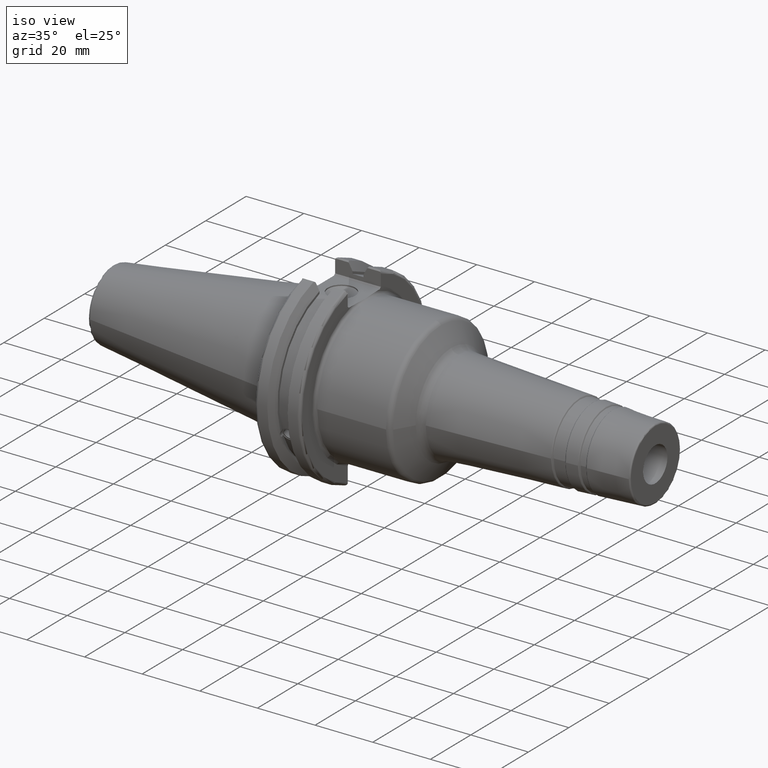
[diagram: clean part render]
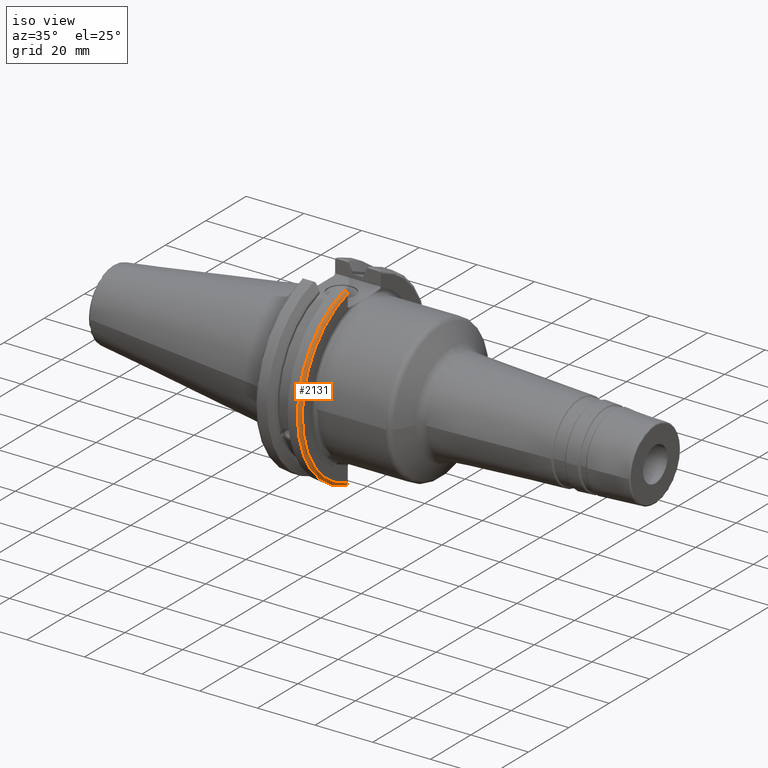
[diagram: same view with one face highlighted and labeled with its STEP entity id]
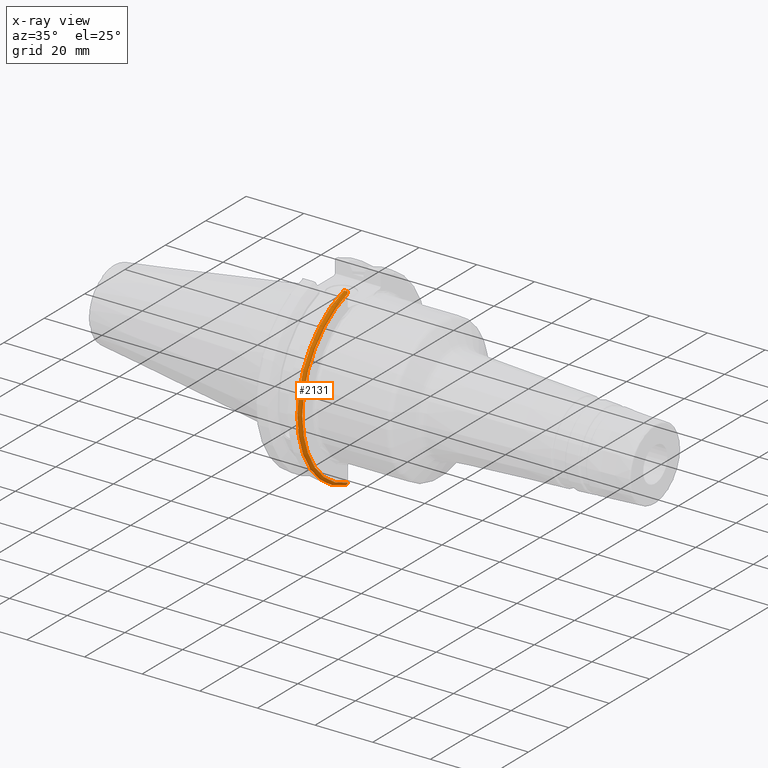
[diagram: x-ray of the same camera — body ghosted, the highlighted face saturated]
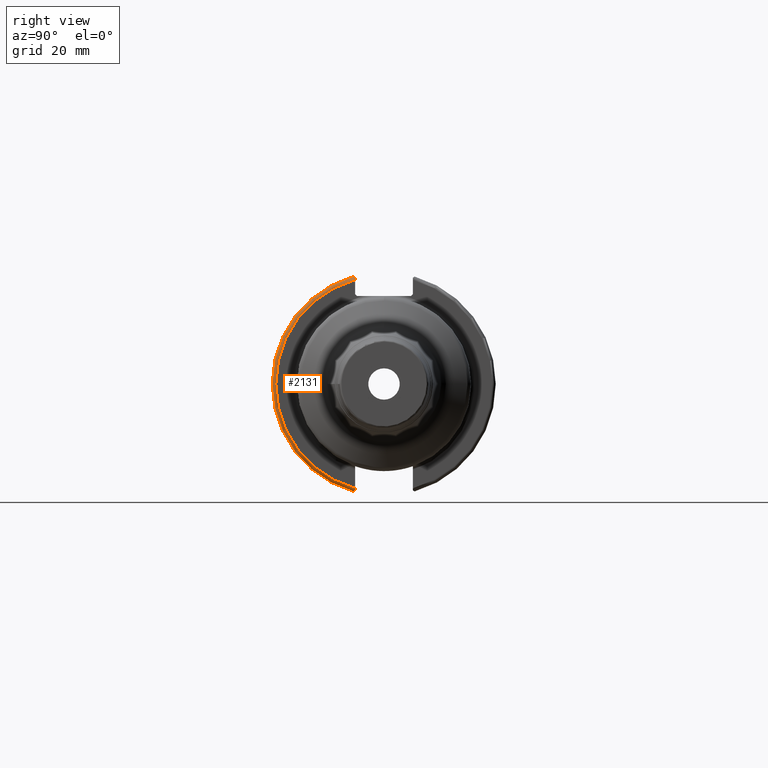
[diagram: same view with one face highlighted and labeled with its STEP entity id]
A machine part, iso view. The second image highlights one B-rep face of the part: STEP entity #2131.
The next image is the same camera in x-ray: the body ghosted, the highlighted face saturated — about 0% of this face is hidden behind the body in this view.
A second angle (right view) of the same face is appended — the face is thin or edge-on in the first view.
In plain terms, the highlighted toroidal blend (fillet) surface has major radius 30.75 mm and minor (blend) radius 1 mm.
Its self-contained STEP definition (entity closure, byte-faithful):
#99=TOROIDAL_SURFACE('',#2419,30.75,1.);
#141=B_SPLINE_CURVE_WITH_KNOTS('',3,(#3985,#3986,#3987,#3988,#3989,#3990),
 .UNSPECIFIED.,.F.,.F.,(4,2,4),(0.097738363091569,0.112311108149119,0.150804350305566),
 .UNSPECIFIED.);
#142=B_SPLINE_CURVE_WITH_KNOTS('',3,(#3992,#3993,#3994,#3995,#3996,#3997),
 .UNSPECIFIED.,.F.,.F.,(4,2,4),(0.452741154494497,0.491581665024872,0.505824174364156),
 .UNSPECIFIED.);
#143=B_SPLINE_CURVE_WITH_KNOTS('',3,(#3999,#4000,#4001,#4002,#4003,#4004,
#4005,#4006),.UNSPECIFIED.,.F.,.F.,(4,2,2,4),(-0.104180282751877,-0.0729784742461446,
-0.0343524753874984,0.),.UNSPECIFIED.);
#144=B_SPLINE_CURVE_WITH_KNOTS('',3,(#4009,#4010,#4011,#4012,#4013,#4014,
#4015,#4016),.UNSPECIFIED.,.F.,.F.,(4,2,2,4),(0.,0.0343524753874978,0.0729784742461449,
0.104180282751877),.UNSPECIFIED.);
#250=FACE_OUTER_BOUND('',#368,.T.);
#368=EDGE_LOOP('',(#1831,#1832,#1833,#1834,#1835,#1836));
#697=CIRCLE('',#2308,30.75);
#751=CIRCLE('',#2420,31.75);
#869=VERTEX_POINT('',#3528);
#870=VERTEX_POINT('',#3530);
#980=VERTEX_POINT('',#3984);
#981=VERTEX_POINT('',#3991);
#982=VERTEX_POINT('',#3998);
#983=VERTEX_POINT('',#4007);
#1138=EDGE_CURVE('',#870,#869,#697,.T.);
#1285=EDGE_CURVE('',#980,#870,#141,.T.);
#1286=EDGE_CURVE('',#869,#981,#142,.T.);
#1287=EDGE_CURVE('',#981,#982,#143,.T.);
#1288=EDGE_CURVE('',#982,#983,#751,.T.);
#1289=EDGE_CURVE('',#983,#980,#144,.T.);
#1831=ORIENTED_EDGE('',*,*,#1285,.T.);
#1832=ORIENTED_EDGE('',*,*,#1138,.T.);
#1833=ORIENTED_EDGE('',*,*,#1286,.T.);
#1834=ORIENTED_EDGE('',*,*,#1287,.T.);
#1835=ORIENTED_EDGE('',*,*,#1288,.T.);
#1836=ORIENTED_EDGE('',*,*,#1289,.T.);
#2131=ADVANCED_FACE('',(#250),#99,.T.);
#2308=AXIS2_PLACEMENT_3D('',#3531,#2745,#2746);
#2419=AXIS2_PLACEMENT_3D('',#3983,#3017,#3018);
#2420=AXIS2_PLACEMENT_3D('',#4008,#3019,#3020);
#2745=DIRECTION('center_axis',(-1.,0.,0.));
#2746=DIRECTION('ref_axis',(0.,-1.,1.60812264967664E-16));
#3017=DIRECTION('center_axis',(1.,0.,0.));
#3018=DIRECTION('ref_axis',(0.,0.,-1.));
#3019=DIRECTION('center_axis',(1.,0.,0.));
#3020=DIRECTION('ref_axis',(0.,-1.,1.60812264967664E-16));
#3528=CARTESIAN_POINT('',(19.05,-8.19,29.6392712461019));
#3530=CARTESIAN_POINT('',(19.05,-8.19,-29.6392712461019));
#3531=CARTESIAN_POINT('Origin',(19.05,0.,0.));
#3983=CARTESIAN_POINT('Origin',(18.05,0.,0.));
#3984=CARTESIAN_POINT('',(18.9058722749097,-8.19,-30.1755016258903));
#3985=CARTESIAN_POINT('Ctrl Pts',(18.9058722749097,-8.19,-30.1755016258903));
#3986=CARTESIAN_POINT('Ctrl Pts',(18.9324477233044,-8.19,-30.1299319366157));
#3987=CARTESIAN_POINT('Ctrl Pts',(18.9550700364447,-8.19,-30.0829389905409));
#3988=CARTESIAN_POINT('Ctrl Pts',(19.0210043632013,-8.19,-29.9188002007263));
#3989=CARTESIAN_POINT('Ctrl Pts',(19.05,-8.19,-29.76758205329));
#3990=CARTESIAN_POINT('Ctrl Pts',(19.05,-8.19,-29.6392712461019));
#3991=CARTESIAN_POINT('',(18.9058722749097,-8.19,30.1755016258903));
#3992=CARTESIAN_POINT('Ctrl Pts',(19.05,-8.19,29.6392712461019));
#3993=CARTESIAN_POINT('Ctrl Pts',(19.05,-8.19,29.7687396145364));
#3994=CARTESIAN_POINT('Ctrl Pts',(19.020485567083,-8.19,29.9212724384851));
#3995=CARTESIAN_POINT('Ctrl Pts',(18.9539643471756,-8.19,30.0852355256475));
#3996=CARTESIAN_POINT('Ctrl Pts',(18.9318163728133,-8.19,30.131014531546));
#3997=CARTESIAN_POINT('Ctrl Pts',(18.9058722749097,-8.19,30.1755016258903));
#3998=CARTESIAN_POINT('',(18.05,-8.67204822802685,30.5427254764662));
#3999=CARTESIAN_POINT('Ctrl Pts',(18.9058722749097,-8.19,30.1755016258903));
#4000=CARTESIAN_POINT('Ctrl Pts',(18.8574463042989,-8.2703682833078,30.2367261024977));
#4001=CARTESIAN_POINT('Ctrl Pts',(18.7926702662319,-8.34909446036477,30.2966996242308));
#4002=CARTESIAN_POINT('Ctrl Pts',(18.6396724190507,-8.48862804755884,30.4029961692546));
#4003=CARTESIAN_POINT('Ctrl Pts',(18.5184414294771,-8.56482138642532,30.4610401774263));
#4004=CARTESIAN_POINT('Ctrl Pts',(18.2983170433775,-8.6471881193939,30.5237870709558));
#4005=CARTESIAN_POINT('Ctrl Pts',(18.1645082512917,-8.67204822802685,30.5427254764662));
#4006=CARTESIAN_POINT('Ctrl Pts',(18.05,-8.67204822802685,30.5427254764662));
#4007=CARTESIAN_POINT('',(18.05,-8.67204822802686,-30.5427254764662));
#4008=CARTESIAN_POINT('Origin',(18.05,0.,0.));
#4009=CARTESIAN_POINT('Ctrl Pts',(18.05,-8.67204822802685,-30.5427254764662));
#4010=CARTESIAN_POINT('Ctrl Pts',(18.1645082512917,-8.67204822802685,-30.5427254764662));
#4011=CARTESIAN_POINT('Ctrl Pts',(18.2983170433775,-8.6471881193939,-30.5237870709558));
#4012=CARTESIAN_POINT('Ctrl Pts',(18.5184414294771,-8.56482138642532,-30.4610401774263));
#4013=CARTESIAN_POINT('Ctrl Pts',(18.6396724190507,-8.48862804755883,-30.4029961692546));
#4014=CARTESIAN_POINT('Ctrl Pts',(18.7926702662319,-8.34909446036477,-30.2966996242308));
#4015=CARTESIAN_POINT('Ctrl Pts',(18.8574463042989,-8.2703682833078,-30.2367261024977));
#4016=CARTESIAN_POINT('Ctrl Pts',(18.9058722749097,-8.19,-30.1755016258903));